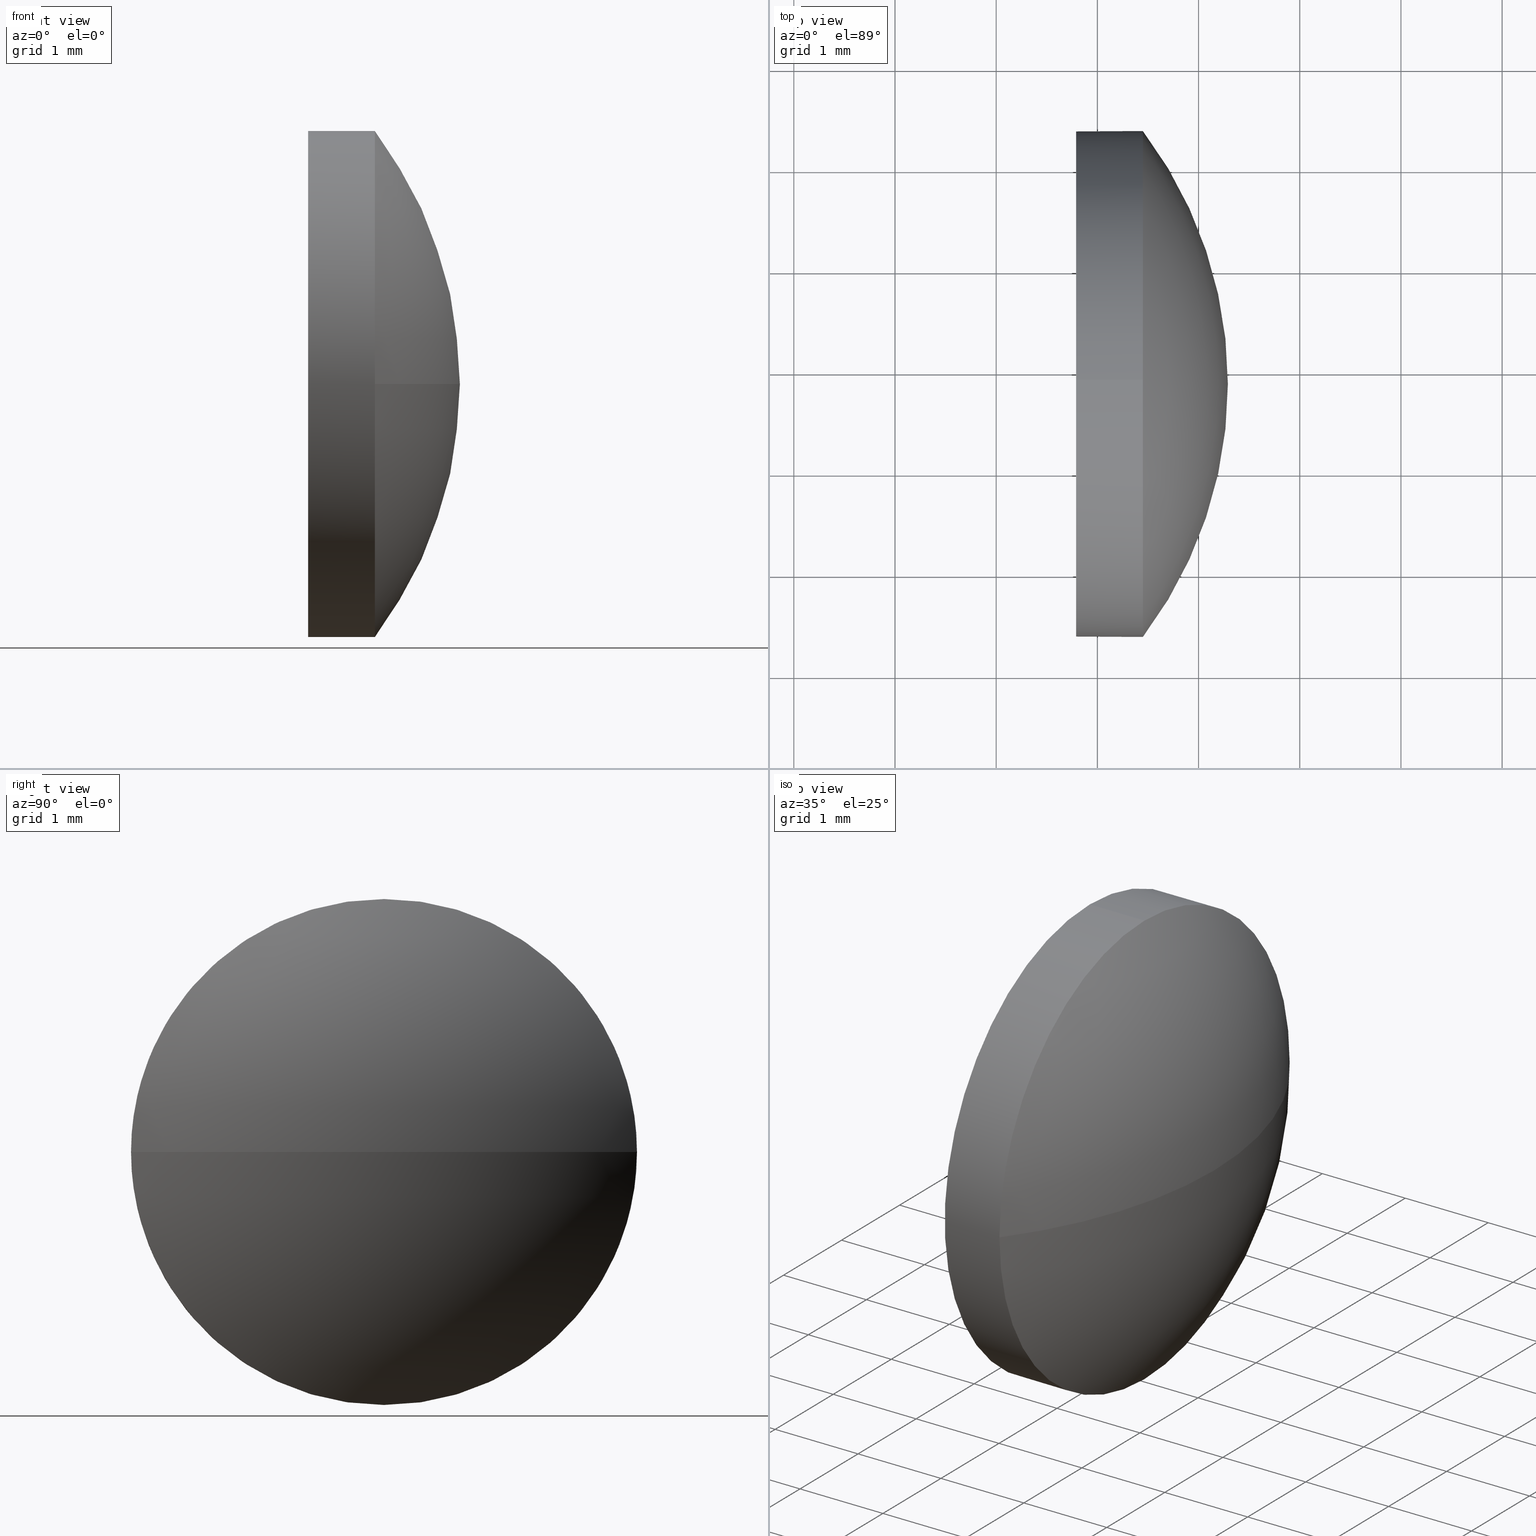
[diagram: canonical four-view strip — front | top / right | iso, engineering-drawing reading convention]
A machine part, canonical four-view strip (front | top / right | iso — engineering-drawing reading convention). The complete STEP part file that produces these views, byte-faithful:
ISO-10303-21;
HEADER;
FILE_DESCRIPTION (( 'STEP AP214' ),
    '1' );
FILE_NAME ('100091.STEP',
    '2019-05-13T03:15:19',
    ( '' ),
    ( '' ),
    'SwSTEP 2.0',
    'SolidWorks 2016',
    '' );
FILE_SCHEMA (( 'AUTOMOTIVE_DESIGN' ));
ENDSEC;

DATA;
#1 =( LENGTH_UNIT ( ) NAMED_UNIT ( * ) SI_UNIT ( .MILLI., .METRE. ) );
#2 = EDGE_CURVE ( 'NONE', #171, #54, #88, .T. ) ;
#3 = VECTOR ( 'NONE', #124, 1000.000000000000000 ) ;
#4 = FACE_OUTER_BOUND ( 'NONE', #115, .T. ) ;
#5 = CARTESIAN_POINT ( 'NONE',  ( 521.4497579000514000, 146.8657861925488500, 0.0000000000000000000 ) ) ;
#6 = DIRECTION ( 'NONE',  ( 0.0000000000000000000, 1.000000000000000000, 1.224646799147350500E-016 ) ) ;
#7 = FILL_AREA_STYLE_COLOUR ( '', #142 ) ;
#8 = CARTESIAN_POINT ( 'NONE',  ( 522.2897579000514300, 146.8657861925488500, 0.0000000000000000000 ) ) ;
#9 = UNCERTAINTY_MEASURE_WITH_UNIT (LENGTH_MEASURE( 1.000000000000000100E-005 ), #1, 'distance_accuracy_value', 'NONE');
#10 =( NAMED_UNIT ( * ) SI_UNIT ( $, .STERADIAN. ) SOLID_ANGLE_UNIT ( ) );
#11 = ORIENTED_EDGE ( 'NONE', *, *, #158, .F. ) ;
#12 = DIRECTION ( 'NONE',  ( -1.000000000000000000, -0.0000000000000000000, -0.0000000000000000000 ) ) ;
#13 = EDGE_CURVE ( 'NONE', #143, #24, #42, .T. ) ;
#14 = ADVANCED_FACE ( 'NONE', ( #4 ), #114, .T. ) ;
#15 = APPLICATION_CONTEXT ( 'automotive_design' ) ;
#16 = ORIENTED_EDGE ( 'NONE', *, *, #2, .T. ) ;
#17 = CARTESIAN_POINT ( 'NONE',  ( 521.4497579000514000, 146.8657861925488500, 2.500000000000002200 ) ) ;
#18 = DIRECTION ( 'NONE',  ( -1.000000000000000000, -0.0000000000000000000, -0.0000000000000000000 ) ) ;
#19 = CARTESIAN_POINT ( 'NONE',  ( 521.4497579000514000, 146.8657861925488500, -2.500000000000002200 ) ) ;
#20 = AXIS2_PLACEMENT_3D ( 'NONE', #63, #12, #49 ) ;
#21 = CARTESIAN_POINT ( 'NONE',  ( 0.0000000000000000000, 0.0000000000000000000, 0.0000000000000000000 ) ) ;
#22 =( NAMED_UNIT ( * ) PLANE_ANGLE_UNIT ( ) SI_UNIT ( $, .RADIAN. ) );
#23 = DIRECTION ( 'NONE',  ( 0.0000000000000000000, 1.224646799147353200E-016, -1.000000000000000000 ) ) ;
#24 = VERTEX_POINT ( 'NONE', #46 ) ;
#25 = SURFACE_SIDE_STYLE ('',( #86 ) ) ;
#26 =( GEOMETRIC_REPRESENTATION_CONTEXT ( 3 ) GLOBAL_UNCERTAINTY_ASSIGNED_CONTEXT ( ( #68 ) ) GLOBAL_UNIT_ASSIGNED_CONTEXT ( ( #106, #22, #10 ) ) REPRESENTATION_CONTEXT ( 'NONE', 'WORKASPACE' ) );
#27 = VERTEX_POINT ( 'NONE', #19 ) ;
#28 = PRODUCT_RELATED_PRODUCT_CATEGORY ( 'part', '', ( #91 ) ) ;
#29 = CIRCLE ( 'NONE', #180, 2.500000000000002200 ) ;
#30 = FACE_OUTER_BOUND ( 'NONE', #67, .T. ) ;
#31 = AXIS2_PLACEMENT_3D ( 'NONE', #95, #162, #92 ) ;
#32 = UNCERTAINTY_MEASURE_WITH_UNIT (LENGTH_MEASURE( 1.000000000000000100E-005 ), #110, 'distance_accuracy_value', 'NONE');
#33 = CARTESIAN_POINT ( 'NONE',  ( 520.3936392805773000, 146.8657861925488500, 2.500000000000002200 ) ) ;
#34 = APPLICATION_PROTOCOL_DEFINITION ( 'draft international standard', 'automotive_design', 1998, #15 ) ;
#35 = DIRECTION ( 'NONE',  ( -1.000000000000000000, -0.0000000000000000000, -0.0000000000000000000 ) ) ;
#36 = ADVANCED_FACE ( 'NONE', ( #66 ), #96, .F. ) ;
#37 = PRODUCT_DEFINITION_CONTEXT ( 'detailed design', #15, 'design' ) ;
#38 = ORIENTED_EDGE ( 'NONE', *, *, #55, .T. ) ;
#39 = ORIENTED_EDGE ( 'NONE', *, *, #55, .F. ) ;
#40 = CIRCLE ( 'NONE', #65, 2.500000000000002200 ) ;
#41 = LINE ( 'NONE', #33, #3 ) ;
#42 = CIRCLE ( 'NONE', #100, 4.140238095238113500 ) ;
#43 = EDGE_LOOP ( 'NONE', ( #131, #80, #163, #117 ) ) ;
#44 = STYLED_ITEM ( 'NONE', ( #179 ), #105 ) ;
#45 =( NAMED_UNIT ( * ) PLANE_ANGLE_UNIT ( ) SI_UNIT ( $, .RADIAN. ) );
#46 = CARTESIAN_POINT ( 'NONE',  ( 521.4497579000514000, 149.3657861925488500, 0.0000000000000000000 ) ) ;
#47 = ORIENTED_EDGE ( 'NONE', *, *, #177, .F. ) ;
#48 = FILL_AREA_STYLE ('',( #145 ) ) ;
#49 = DIRECTION ( 'NONE',  ( 0.0000000000000000000, 0.0000000000000000000, 1.000000000000000000 ) ) ;
#50 = DIRECTION ( 'NONE',  ( -1.000000000000000000, -0.0000000000000000000, -0.0000000000000000000 ) ) ;
#51 = CARTESIAN_POINT ( 'NONE',  ( 521.4497579000514000, 146.8657861925488500, 0.0000000000000000000 ) ) ;
#52 = CARTESIAN_POINT ( 'NONE',  ( 520.3936392805773000, 146.8657861925488500, -2.500000000000002200 ) ) ;
#53 = PRODUCT_DEFINITION_FORMATION_WITH_SPECIFIED_SOURCE ( '�κ�', '', #91, .NOT_KNOWN. ) ;
#54 = VERTEX_POINT ( 'NONE', #146 ) ;
#55 = EDGE_CURVE ( 'NONE', #85, #72, #148, .T. ) ;
#56 = DIRECTION ( 'NONE',  ( 1.000000000000000000, 0.0000000000000000000, 0.0000000000000000000 ) ) ;
#57 = AXIS2_PLACEMENT_3D ( 'NONE', #60, #120, #160 ) ;
#58 = SURFACE_SIDE_STYLE ('',( #99 ) ) ;
#59 = DIRECTION ( 'NONE',  ( 0.0000000000000000000, 0.0000000000000000000, 1.000000000000000000 ) ) ;
#60 = CARTESIAN_POINT ( 'NONE',  ( 520.3936392805773000, 146.8657861925488500, 0.0000000000000000000 ) ) ;
#61 = DIRECTION ( 'NONE',  ( 0.0000000000000000000, 0.0000000000000000000, 1.000000000000000000 ) ) ;
#62 = MANIFOLD_SOLID_BREP ( '��ת1', #165 ) ;
#63 = CARTESIAN_POINT ( 'NONE',  ( 520.3936392805773000, 146.8657861925488500, 0.0000000000000000000 ) ) ;
#64 = SPHERICAL_SURFACE ( 'NONE', #169, 4.140238095238132100 ) ;
#65 = AXIS2_PLACEMENT_3D ( 'NONE', #97, #50, #59 ) ;
#66 = FACE_OUTER_BOUND ( 'NONE', #156, .T. ) ;
#67 = EDGE_LOOP ( 'NONE', ( #75, #174, #178, #39 ) ) ;
#68 = UNCERTAINTY_MEASURE_WITH_UNIT (LENGTH_MEASURE( 1.000000000000000100E-005 ), #106, 'distance_accuracy_value', 'NONE');
#69 = PRODUCT_CONTEXT ( 'NONE', #157, 'mechanical' ) ;
#70 = DIRECTION ( 'NONE',  ( 1.000000000000000000, 0.0000000000000000000, 0.0000000000000000000 ) ) ;
#71 = FACE_OUTER_BOUND ( 'NONE', #43, .T. ) ;
#72 = VERTEX_POINT ( 'NONE', #17 ) ;
#73 = COLOUR_RGB ( '',1.000000000000000000, 1.000000000000000000, 1.000000000000000000 ) ;
#74 = EDGE_CURVE ( 'NONE', #27, #85, #29, .T. ) ;
#75 = ORIENTED_EDGE ( 'NONE', *, *, #183, .F. ) ;
#76 = CARTESIAN_POINT ( 'NONE',  ( 520.7897579000514300, 146.8657861925488500, 0.0000000000000000000 ) ) ;
#77 = CARTESIAN_POINT ( 'NONE',  ( 521.4497579000514000, 144.3657861925488500, -3.061616997868367400E-016 ) ) ;
#78 = DIRECTION ( 'NONE',  ( 0.0000000000000000000, 1.000000000000000000, 0.0000000000000000000 ) ) ;
#79 = DIRECTION ( 'NONE',  ( -0.0000000000000000000, 0.0000000000000000000, -1.000000000000000000 ) ) ;
#80 = ORIENTED_EDGE ( 'NONE', *, *, #183, .T. ) ;
#81 = CARTESIAN_POINT ( 'NONE',  ( 518.1495198048132800, 146.8657861925488500, 0.0000000000000000000 ) ) ;
#82 = AXIS2_PLACEMENT_3D ( 'NONE', #152, #79, #78 ) ;
#83 = ADVANCED_FACE ( 'NONE', ( #71 ), #64, .T. ) ;
#84 = EDGE_LOOP ( 'NONE', ( #11, #150, #38, #159, #103 ) ) ;
#85 = VERTEX_POINT ( 'NONE', #77 ) ;
#86 = SURFACE_STYLE_FILL_AREA ( #48 ) ;
#87 = AXIS2_PLACEMENT_3D ( 'NONE', #21, #137, #56 ) ;
#88 = CIRCLE ( 'NONE', #185, 2.500000000000002200 ) ;
#89 = ORIENTED_EDGE ( 'NONE', *, *, #168, .T. ) ;
#90 = CARTESIAN_POINT ( 'NONE',  ( 518.1495198048132800, 146.8657861925488500, 0.0000000000000000000 ) ) ;
#91 = PRODUCT ( '100091', '100091', '', ( #69 ) ) ;
#92 = DIRECTION ( 'NONE',  ( 0.0000000000000000000, 0.0000000000000000000, -1.000000000000000000 ) ) ;
#93 = FILL_AREA_STYLE ('',( #7 ) ) ;
#94 = CARTESIAN_POINT ( 'NONE',  ( 518.1495198048132800, 146.8657861925488500, 0.0000000000000000000 ) ) ;
#95 = CARTESIAN_POINT ( 'NONE',  ( 520.7897579000514300, 146.8657861925488500, 0.0000000000000000000 ) ) ;
#96 = PLANE ( 'NONE',  #31 ) ;
#97 = CARTESIAN_POINT ( 'NONE',  ( 520.7897579000514300, 146.8657861925488500, 0.0000000000000000000 ) ) ;
#98 = DIRECTION ( 'NONE',  ( -0.0000000000000000000, 0.0000000000000000000, -1.000000000000000000 ) ) ;
#99 = SURFACE_STYLE_FILL_AREA ( #93 ) ;
#100 = AXIS2_PLACEMENT_3D ( 'NONE', #94, #151, #70 ) ;
#101 = PRESENTATION_LAYER_ASSIGNMENT (  '', '', ( #44 ) ) ;
#102 =( GEOMETRIC_REPRESENTATION_CONTEXT ( 3 ) GLOBAL_UNCERTAINTY_ASSIGNED_CONTEXT ( ( #9 ) ) GLOBAL_UNIT_ASSIGNED_CONTEXT ( ( #1, #45, #112 ) ) REPRESENTATION_CONTEXT ( 'NONE', 'WORKASPACE' ) );
#103 = ORIENTED_EDGE ( 'NONE', *, *, #2, .F. ) ;
#104 = DIRECTION ( 'NONE',  ( 0.0000000000000000000, 0.0000000000000000000, 1.000000000000000000 ) ) ;
#105 = ADVANCED_BREP_SHAPE_REPRESENTATION ( '100091', ( #62, #87 ), #102 ) ;
#106 =( LENGTH_UNIT ( ) NAMED_UNIT ( * ) SI_UNIT ( .MILLI., .METRE. ) );
#107 = AXIS2_PLACEMENT_3D ( 'NONE', #5, #133, #149 ) ;
#108 = AXIS2_PLACEMENT_3D ( 'NONE', #111, #123, #104 ) ;
#109 = SHAPE_DEFINITION_REPRESENTATION ( #154, #105 ) ;
#110 =( LENGTH_UNIT ( ) NAMED_UNIT ( * ) SI_UNIT ( .MILLI., .METRE. ) );
#111 = CARTESIAN_POINT ( 'NONE',  ( 521.4497579000514000, 146.8657861925488500, 0.0000000000000000000 ) ) ;
#112 =( NAMED_UNIT ( * ) SI_UNIT ( $, .STERADIAN. ) SOLID_ANGLE_UNIT ( ) );
#113 = MECHANICAL_DESIGN_GEOMETRIC_PRESENTATION_REPRESENTATION (  '', ( #44 ), #172 ) ;
#114 = CYLINDRICAL_SURFACE ( 'NONE', #57, 2.500000000000002200 ) ;
#115 = EDGE_LOOP ( 'NONE', ( #186, #173, #47, #128, #89 ) ) ;
#116 = CYLINDRICAL_SURFACE ( 'NONE', #20, 2.500000000000002200 ) ;
#117 = ORIENTED_EDGE ( 'NONE', *, *, #140, .F. ) ;
#118 = STYLED_ITEM ( 'NONE', ( #155 ), #62 ) ;
#119 = CIRCLE ( 'NONE', #139, 2.500000000000002200 ) ;
#120 = DIRECTION ( 'NONE',  ( -1.000000000000000000, -0.0000000000000000000, -0.0000000000000000000 ) ) ;
#121 =( NAMED_UNIT ( * ) PLANE_ANGLE_UNIT ( ) SI_UNIT ( $, .RADIAN. ) );
#122 = DIRECTION ( 'NONE',  ( 0.0000000000000000000, 1.000000000000000000, 0.0000000000000000000 ) ) ;
#123 = DIRECTION ( 'NONE',  ( -1.000000000000000000, -0.0000000000000000000, -0.0000000000000000000 ) ) ;
#124 = DIRECTION ( 'NONE',  ( -1.000000000000000000, -0.0000000000000000000, -0.0000000000000000000 ) ) ;
#125 = PRODUCT_DEFINITION ( 'δ֪', '', #53, #37 ) ;
#126 = CARTESIAN_POINT ( 'NONE',  ( 521.4497579000514000, 146.8657861925488500, 0.0000000000000000000 ) ) ;
#127 = CIRCLE ( 'NONE', #108, 2.500000000000002200 ) ;
#128 = ORIENTED_EDGE ( 'NONE', *, *, #132, .F. ) ;
#129 = PRESENTATION_LAYER_ASSIGNMENT (  '', '', ( #118 ) ) ;
#130 = APPLICATION_PROTOCOL_DEFINITION ( 'draft international standard', 'automotive_design', 1998, #157 ) ;
#131 = ORIENTED_EDGE ( 'NONE', *, *, #13, .F. ) ;
#132 = EDGE_CURVE ( 'NONE', #72, #54, #41, .T. ) ;
#133 = DIRECTION ( 'NONE',  ( -1.000000000000000000, -0.0000000000000000000, -0.0000000000000000000 ) ) ;
#134 = ORIENTED_EDGE ( 'NONE', *, *, #177, .T. ) ;
#135 = CIRCLE ( 'NONE', #164, 4.140238095238141000 ) ;
#136 = DIRECTION ( 'NONE',  ( 0.0000000000000000000, 0.0000000000000000000, 1.000000000000000000 ) ) ;
#137 = DIRECTION ( 'NONE',  ( 0.0000000000000000000, 0.0000000000000000000, 1.000000000000000000 ) ) ;
#138 = DIRECTION ( 'NONE',  ( 0.0000000000000000000, 0.0000000000000000000, 1.000000000000000000 ) ) ;
#139 = AXIS2_PLACEMENT_3D ( 'NONE', #126, #35, #138 ) ;
#140 = EDGE_CURVE ( 'NONE', #24, #27, #119, .T. ) ;
#141 = ADVANCED_FACE ( 'NONE', ( #184 ), #116, .T. ) ;
#142 = COLOUR_RGB ( '',1.000000000000000000, 1.000000000000000000, 1.000000000000000000 ) ;
#143 = VERTEX_POINT ( 'NONE', #8 ) ;
#144 = MECHANICAL_DESIGN_GEOMETRIC_PRESENTATION_REPRESENTATION (  '', ( #118 ), #26 ) ;
#145 = FILL_AREA_STYLE_COLOUR ( '', #73 ) ;
#146 = CARTESIAN_POINT ( 'NONE',  ( 520.7897579000514300, 146.8657861925488500, 2.500000000000002200 ) ) ;
#147 = LINE ( 'NONE', #52, #175 ) ;
#148 = CIRCLE ( 'NONE', #107, 2.500000000000002200 ) ;
#149 = DIRECTION ( 'NONE',  ( 0.0000000000000000000, 0.0000000000000000000, 1.000000000000000000 ) ) ;
#150 = ORIENTED_EDGE ( 'NONE', *, *, #74, .T. ) ;
#151 = DIRECTION ( 'NONE',  ( -0.0000000000000000000, 0.0000000000000000000, 1.000000000000000000 ) ) ;
#152 = CARTESIAN_POINT ( 'NONE',  ( 518.1495198048132800, 146.8657861925488500, 0.0000000000000000000 ) ) ;
#153 = DIRECTION ( 'NONE',  ( -1.000000000000000000, -0.0000000000000000000, -0.0000000000000000000 ) ) ;
#154 = PRODUCT_DEFINITION_SHAPE ( 'NONE', 'NONE',  #125 ) ;
#155 = PRESENTATION_STYLE_ASSIGNMENT (( #161 ) ) ;
#156 = EDGE_LOOP ( 'NONE', ( #134, #16 ) ) ;
#157 = APPLICATION_CONTEXT ( 'automotive_design' ) ;
#158 = EDGE_CURVE ( 'NONE', #27, #171, #147, .T. ) ;
#159 = ORIENTED_EDGE ( 'NONE', *, *, #132, .T. ) ;
#160 = DIRECTION ( 'NONE',  ( 0.0000000000000000000, 0.0000000000000000000, 1.000000000000000000 ) ) ;
#161 = SURFACE_STYLE_USAGE ( .BOTH. , #58 ) ;
#162 = DIRECTION ( 'NONE',  ( 1.000000000000000000, 0.0000000000000000000, 0.0000000000000000000 ) ) ;
#163 = ORIENTED_EDGE ( 'NONE', *, *, #74, .F. ) ;
#164 = AXIS2_PLACEMENT_3D ( 'NONE', #90, #23, #6 ) ;
#165 = CLOSED_SHELL ( 'NONE', ( #14, #83, #170, #141, #36 ) ) ;
#166 = SURFACE_STYLE_USAGE ( .BOTH. , #25 ) ;
#167 = DIRECTION ( 'NONE',  ( -1.000000000000000000, -0.0000000000000000000, -0.0000000000000000000 ) ) ;
#168 = EDGE_CURVE ( 'NONE', #72, #24, #127, .T. ) ;
#169 = AXIS2_PLACEMENT_3D ( 'NONE', #81, #98, #122 ) ;
#170 = ADVANCED_FACE ( 'NONE', ( #30 ), #182, .T. ) ;
#171 = VERTEX_POINT ( 'NONE', #181 ) ;
#172 =( GEOMETRIC_REPRESENTATION_CONTEXT ( 3 ) GLOBAL_UNCERTAINTY_ASSIGNED_CONTEXT ( ( #32 ) ) GLOBAL_UNIT_ASSIGNED_CONTEXT ( ( #110, #121, #176 ) ) REPRESENTATION_CONTEXT ( 'NONE', 'WORKASPACE' ) );
#173 = ORIENTED_EDGE ( 'NONE', *, *, #158, .T. ) ;
#174 = ORIENTED_EDGE ( 'NONE', *, *, #13, .T. ) ;
#175 = VECTOR ( 'NONE', #167, 1000.000000000000000 ) ;
#176 =( NAMED_UNIT ( * ) SI_UNIT ( $, .STERADIAN. ) SOLID_ANGLE_UNIT ( ) );
#177 = EDGE_CURVE ( 'NONE', #54, #171, #40, .T. ) ;
#178 = ORIENTED_EDGE ( 'NONE', *, *, #168, .F. ) ;
#179 = PRESENTATION_STYLE_ASSIGNMENT (( #166 ) ) ;
#180 = AXIS2_PLACEMENT_3D ( 'NONE', #51, #153, #61 ) ;
#181 = CARTESIAN_POINT ( 'NONE',  ( 520.7897579000514300, 146.8657861925488500, -2.500000000000002200 ) ) ;
#182 = SPHERICAL_SURFACE ( 'NONE', #82, 4.140238095238132100 ) ;
#183 = EDGE_CURVE ( 'NONE', #143, #85, #135, .T. ) ;
#184 = FACE_OUTER_BOUND ( 'NONE', #84, .T. ) ;
#185 = AXIS2_PLACEMENT_3D ( 'NONE', #76, #18, #136 ) ;
#186 = ORIENTED_EDGE ( 'NONE', *, *, #140, .T. ) ;
ENDSEC;
END-ISO-10303-21;
